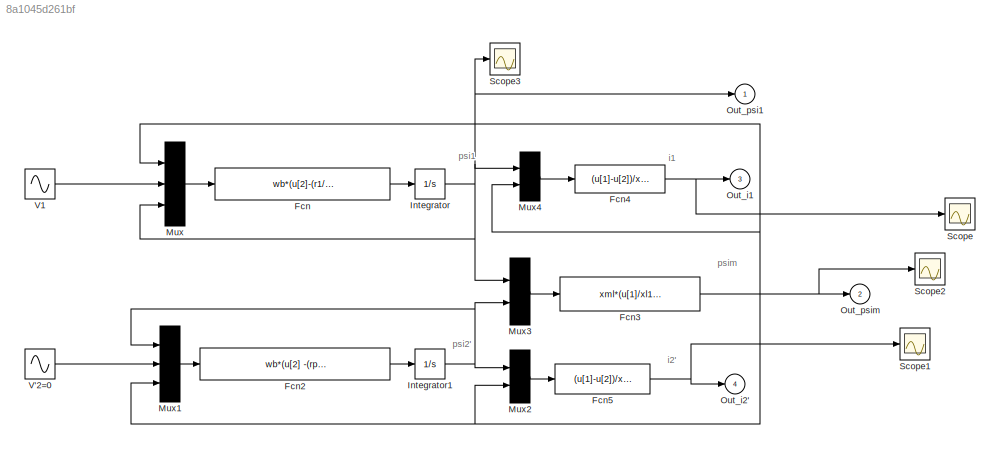
MODEL slx_8a1045d261bf
KIND model
CONFIG AbsTol = 1e-6
CONFIG EnableMultiTasking = off
CONFIG FixedStep = auto
CONFIG MaxStep = 1e-3
CONFIG MinStep = auto
CONFIG RelTol = 1e-8
CONFIG SampleTimeConstraint = Unconstrained
CONFIG Solver = ode15s
CONFIG SolverName = ode15s
CONFIG StartTime = 0.0
CONFIG StopTime = 10
BLOCK [Fcn] Fcn
  Expr = wb*(u[2]-(r1/xl1)*(u[3]-u[1]))
BLOCK [Fcn] Fcn2
  Expr = wb*(u[2] -(rp2/xpl2)*(u[1]-u[3]))
BLOCK [Fcn] Fcn3
  Expr = xml*(u[1]/xl1+u[2]/xpl2)
BLOCK [Fcn] Fcn4
  Expr = (u[1]-u[2])/xl1
BLOCK [Fcn] Fcn5
  Expr = (u[1]-u[2])/xpl2
BLOCK [Integrator] Integrator
  Ports = [1, 1]
BLOCK [Integrator] Integrator1
  Ports = [1, 1]
BLOCK [Mux] Mux
  Inputs = 3
  Ports = [3, 1]
BLOCK [Mux] Mux1
  Inputs = 3
  Ports = [3, 1]
BLOCK [Mux] Mux2
  Inputs = 2
  Ports = [2, 1]
BLOCK [Mux] Mux3
  Inputs = 2
  Ports = [2, 1]
BLOCK [Mux] Mux4
  Inputs = 2
  Ports = [2, 1]
BLOCK [Outport] Out_i1
  InitialOutput = 0
  Port = 3
BLOCK [Outport] Out_i2'
  InitialOutput = 0
  Port = 4
BLOCK [Outport] Out_psi1
  InitialOutput = 0
BLOCK [Outport] Out_psim
  InitialOutput = 0
  Port = 2
BLOCK [Scope] Scope
  Floating = off
  NumInputPorts = 1
  Ports = [1]
  ScopeSpecificationString = Simulink.scopes.TimeScopeBlockCfg('CurrentConfiguration', extmgr.ConfigurationSet(extmgr.Configuration('Core','General UI',true),extmgr.Configuration('Core','Source UI',true),extmgr.Configuration('Sources','WiredSimulink',true),extmgr.Configuration('Visuals','Time Domain',true,'SerializedDisplays',{struct('MinYLimReal','-599.99091','MaxYLimReal','493.43514','YLabelReal','','MinYLimMag',' 0.00000',...<+1382ch>
BLOCK [Scope] Scope1
  Floating = off
  NumInputPorts = 1
  Ports = [1]
  ScopeSpecificationString = Simulink.scopes.TimeScopeBlockCfg('CurrentConfiguration', extmgr.ConfigurationSet(extmgr.Configuration('Core','General UI',true),extmgr.Configuration('Core','Source UI',true),extmgr.Configuration('Sources','WiredSimulink',true,'DataLoggingVariableName','ScopeData1'),extmgr.Configuration('Visuals','Time Domain',true,'SerializedDisplays',{struct('MinYLimReal','-839.5118','MaxYLimReal','895.52217','Y...<+1423ch>
BLOCK [Scope] Scope2
  Floating = off
  NumInputPorts = 1
  Ports = [1]
  ScopeSpecificationString = Simulink.scopes.TimeScopeBlockCfg('CurrentConfiguration', extmgr.ConfigurationSet(extmgr.Configuration('Core','General UI',true),extmgr.Configuration('Core','Source UI',true),extmgr.Configuration('Sources','WiredSimulink',true,'DataLoggingVariableName','ScopeData2'),extmgr.Configuration('Visuals','Time Domain',true,'SerializedDisplays',{struct('MinYLimReal','-38.51615','MaxYLimReal','38.51614','YL...<+1417ch>
BLOCK [Scope] Scope3
  Floating = off
  NumInputPorts = 1
  Ports = [1]
  ScopeSpecificationString = Simulink.scopes.TimeScopeBlockCfg('CurrentConfiguration', extmgr.ConfigurationSet(extmgr.Configuration('Core','General UI',true),extmgr.Configuration('Core','Source UI',true),extmgr.Configuration('Sources','WiredSimulink',true,'DataLoggingVariableName','ScopeData3'),extmgr.Configuration('Visuals','Time Domain',true,'SerializedDisplays',{struct('MinYLimReal','-599.99091','MaxYLimReal','599.9909','Y...<+1454ch>
BLOCK [Sin] V'2=0
  Amplitude = 0
  Ports = [0, 1]
  SampleTime = 0
BLOCK [Sin] V1
  Amplitude = 120
  Frequency = 120*pi
  Ports = [0, 1]
  SampleTime = 0
  Samples = 60
ANNOTATION (root): i1
ANNOTATION (root): i2'
ANNOTATION (root): psi1
ANNOTATION (root): psi2'
ANNOTATION (root): psim
LINE Fcn2:1 -> Integrator1:1
NET Fcn3:1 -> Mux1:3, Mux2:2, Mux4:2, Mux:1, Out_psim:1, Scope2:1
NET Fcn4:1 -> Out_i1:1, Scope:1
NET Fcn5:1 -> Out_i2':1, Scope1:1
LINE Fcn:1 -> Integrator:1
NET Integrator1:1 -> Mux1:1, Mux2:1, Mux3:2
NET Integrator:1 -> Mux3:1, Mux4:1, Mux:3, Out_psi1:1, Scope3:1
LINE Mux1:1 -> Fcn2:1
LINE Mux2:1 -> Fcn5:1
LINE Mux3:1 -> Fcn3:1
LINE Mux4:1 -> Fcn4:1
LINE Mux:1 -> Fcn:1
LINE V'2=0:1 -> Mux1:2
LINE V1:1 -> Mux:2
note: NET lines group one-source signal fan-out (src -> all destinations, sorted); 1:1 wires keep LINE
